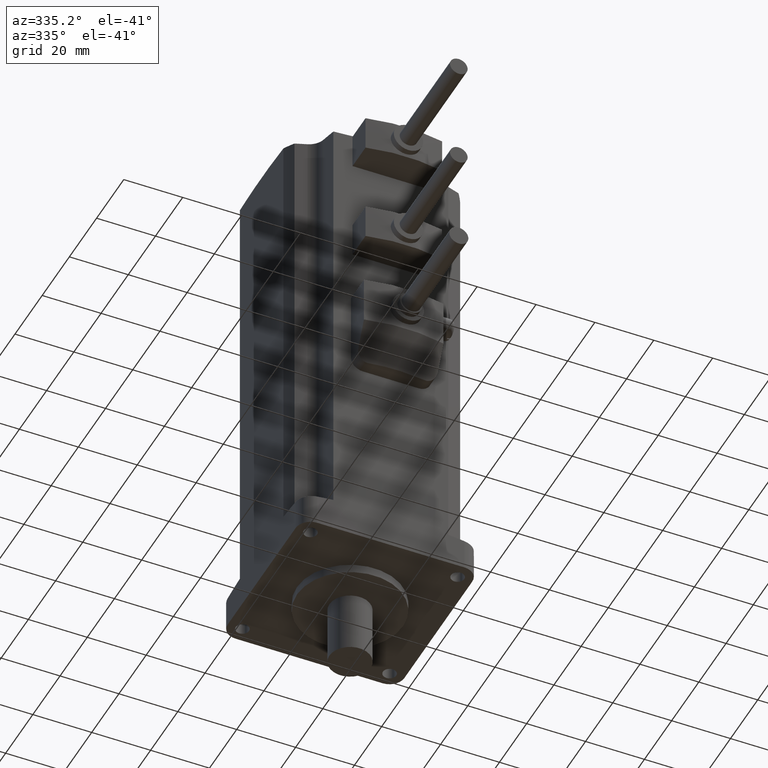
[diagram: clean part render]
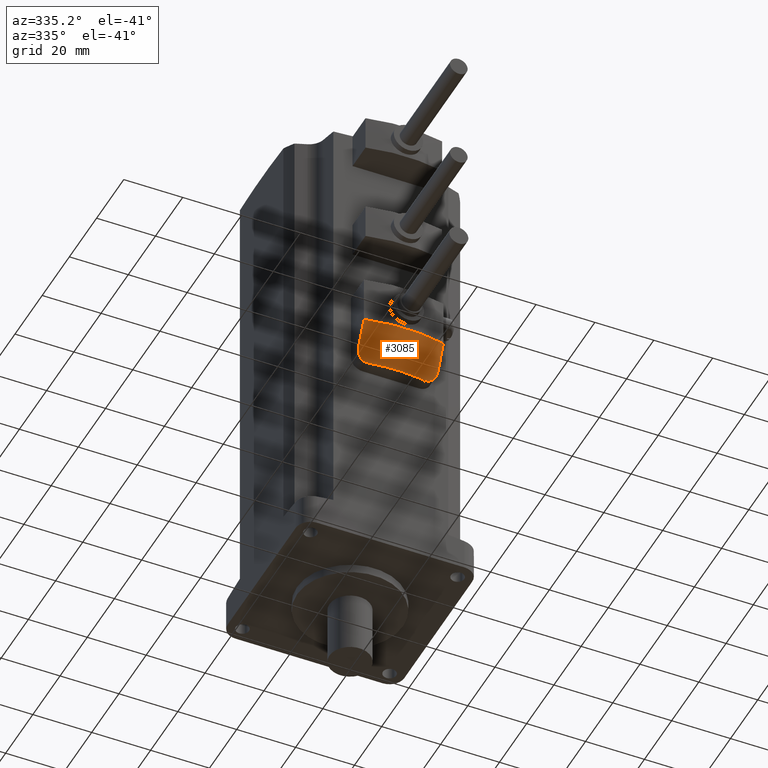
[diagram: same view with one face highlighted and labeled with its STEP entity id]
A machine part, auxiliary view. The second image highlights one B-rep face of the part: STEP entity #3085.
In plain terms, the highlighted face is a freeform B-spline surface patch.
Its self-contained STEP definition (entity closure, byte-faithful):
#32 = CIRCLE ( 'NONE', #3870, 60.00000000000000000 ) ;
#46 = EDGE_CURVE ( 'NONE', #3300, #2056, #2901, .T. ) ;
#178 = LINE ( 'NONE', #319, #5138 ) ;
#218 = ORIENTED_EDGE ( 'NONE', *, *, #3942, .T. ) ;
#256 =( BOUNDED_SURFACE ( )  B_SPLINE_SURFACE ( 3, 1, ( 
 ( #2317, #4769 ),
 ( #437, #1197 ),
 ( #4002, #1559 ),
 ( #1922, #3151 ) ),
 .UNSPECIFIED., .F., .F., .F. ) 
 B_SPLINE_SURFACE_WITH_KNOTS ( ( 4, 4 ),
 ( 2, 2 ),
 ( 0.0000000000000000000, 1.000000000000000000 ),
 ( 0.0000000000000000000, 1.000000000000000000 ),
 .UNSPECIFIED. ) 
 GEOMETRIC_REPRESENTATION_ITEM ( )  RATIONAL_B_SPLINE_SURFACE ( (
 ( 1.000000000000000000, 1.000000000000000000),
 ( 0.9829058423301690883, 0.9829058423301690883),
 ( 0.9829058423301690883, 0.9829058423301690883),
 ( 1.000000000000000000, 1.000000000000000000) ) ) 
 REPRESENTATION_ITEM ( '' )  SURFACE ( )  );
#299 = CARTESIAN_POINT ( 'NONE',  ( -10.57450776104492896, -34.12843994265194425, 67.63735262351632116 ) ) ;
#303 = CARTESIAN_POINT ( 'NONE',  ( -3.136720277832199422, -34.93923013271018618, 67.50000000000000000 ) ) ;
#319 = CARTESIAN_POINT ( 'NONE',  ( 13.50000000000000533, -18.75635014758168850, 37.35438989262622300 ) ) ;
#329 = CARTESIAN_POINT ( 'NONE',  ( -1.548455948475013999, -35.00094392129675214, 67.50000000000000000 ) ) ;
#351 = CARTESIAN_POINT ( 'NONE',  ( -12.81066511392276830, -34.47082892102596219, 69.25141310991961063 ) ) ;
#424 = CARTESIAN_POINT ( 'NONE',  ( 13.01765801228201802, -34.58471816124337295, 69.57814321692603698 ) ) ;
#437 = CARTESIAN_POINT ( 'NONE',  ( 4.578261524350977218, -35.52174349567316369, 67.50000000000000000 ) ) ;
#531 = CARTESIAN_POINT ( 'NONE',  ( 10.82867431691808235, -34.12135916853024753, 67.71745564410953477 ) ) ;
#691 = DIRECTION ( 'NONE',  ( -0.0000000000000000000, -0.4384236320214142668, 0.8987684456438996827 ) ) ;
#724 = CARTESIAN_POINT ( 'NONE',  ( -13.31848228831807468, -34.86014666968777220, 70.28169370064232169 ) ) ;
#729 = CARTESIAN_POINT ( 'NONE',  ( -7.918103306390247731, -34.49680986426583473, 67.50000000000000000 ) ) ;
#749 = CARTESIAN_POINT ( 'NONE',  ( -13.47759624007209744, -35.17910057881120167, 71.01039413446817150 ) ) ;
#846 = CARTESIAN_POINT ( 'NONE',  ( 13.13303648534986579, -34.67050269656777317, 69.80701103023288567 ) ) ;
#1140 = CARTESIAN_POINT ( 'NONE',  ( -13.38716404178432384, -34.96301636351223152, 70.52483772383369853 ) ) ;
#1195 = VERTEX_POINT ( 'NONE', #1925 ) ;
#1197 = CARTESIAN_POINT ( 'NONE',  ( 4.578261524350977218, -41.52174349567316369, 79.79999999999999716 ) ) ;
#1209 = CARTESIAN_POINT ( 'NONE',  ( 12.20976696774798498, -34.25499739075450378, 68.54581809630550993 ) ) ;
#1498 = VERTEX_POINT ( 'NONE', #2884 ) ;
#1500 = CARTESIAN_POINT ( 'NONE',  ( 9.500000000007661427, -34.24314306314152390, 67.50000000000000000 ) ) ;
#1534 = EDGE_CURVE ( 'NONE', #4943, #1498, #32, .T. ) ;
#1559 = CARTESIAN_POINT ( 'NONE',  ( -4.578261524350983436, -41.52174349567317080, 79.79999999999999716 ) ) ;
#1580 = FACE_OUTER_BOUND ( 'NONE', #2467, .T. ) ;
#1594 = CARTESIAN_POINT ( 'NONE',  ( 11.56099622106447811, -34.14981213963760354, 68.06111250106494026 ) ) ;
#1618 = CARTESIAN_POINT ( 'NONE',  ( 13.38727625436604995, -34.96322628214247885, 70.52532078884716782 ) ) ;
#1642 = ORIENTED_EDGE ( 'NONE', *, *, #2222, .F. ) ;
#1733 = CARTESIAN_POINT ( 'NONE',  ( 13.50000000000000533, -35.41274532191035718, 71.50000000000001421 ) ) ;
#1837 = CARTESIAN_POINT ( 'NONE',  ( -11.32865264113721615, -34.13219257540012563, 67.93222928183793385 ) ) ;
#1862 = CARTESIAN_POINT ( 'NONE',  ( -13.01770312298412513, -34.58485576993624022, 69.57845095464764995 ) ) ;
#1866 = CARTESIAN_POINT ( 'NONE',  ( 6.360037301111250763, -34.74665526889583589, 67.50000000000000000 ) ) ;
#1922 = CARTESIAN_POINT ( 'NONE',  ( -13.50000000000001776, -33.46152580971523349, 67.50000000000000000 ) ) ;
#1925 = CARTESIAN_POINT ( 'NONE',  ( -9.500000000006677325, -34.24314306314168732, 67.50000000000000000 ) ) ;
#1935 = CARTESIAN_POINT ( 'NONE',  ( -10.83239671236207080, -34.12131778728752352, 67.71877303244045265 ) ) ;
#1981 = B_SPLINE_CURVE_WITH_KNOTS ( 'NONE', 3,
 ( #1500, #1866, #2333, #329, #303, #3917, #729, #4342 ),
 .UNSPECIFIED., .F., .F.,
 ( 4, 2, 2, 4 ),
 ( 0.004038723917546237045, 0.01353058257738122550, 0.01827651190729872102, 0.02302244123721621655 ),
 .UNSPECIFIED. ) ;
#2056 = VERTEX_POINT ( 'NONE', #1733 ) ;
#2222 = EDGE_CURVE ( 'NONE', #3300, #1195, #1981, .T. ) ;
#2250 = CARTESIAN_POINT ( 'NONE',  ( -13.50000000000001954, -35.41274532191035718, 71.50000000000001421 ) ) ;
#2305 = CARTESIAN_POINT ( 'NONE',  ( -9.500000000006677325, -34.24314306314168732, 67.50000000000000000 ) ) ;
#2317 = CARTESIAN_POINT ( 'NONE',  ( 13.50000000000001066, -33.46152580971523349, 67.50000000000000000 ) ) ;
#2333 = CARTESIAN_POINT ( 'NONE',  ( 3.205371691824354663, -34.99807948093933163, 67.49999999999998579 ) ) ;
#2339 = VECTOR ( 'NONE', #4242, 1000.000000000000114 ) ;
#2399 = ORIENTED_EDGE ( 'NONE', *, *, #3305, .F. ) ;
#2429 = CARTESIAN_POINT ( 'NONE',  ( 9.770133014376989777, -34.19982558361986946, 67.50000000000038369 ) ) ;
#2467 = EDGE_LOOP ( 'NONE', ( #2399, #218, #1642, #3758, #2598, #3055 ) ) ;
#2566 = EDGE_CURVE ( 'NONE', #2056, #4943, #178, .T. ) ;
#2598 = ORIENTED_EDGE ( 'NONE', *, *, #2566, .T. ) ;
#2793 = CARTESIAN_POINT ( 'NONE',  ( 12.57532611377687459, -34.36452451348569781, 68.92854184682384755 ) ) ;
#2884 = CARTESIAN_POINT ( 'NONE',  ( -13.50000000000001954, -39.46152580971521928, 79.80000000000001137 ) ) ;
#2901 = B_SPLINE_CURVE_WITH_KNOTS ( 'NONE', 3,
 ( #4467, #2429, #4492, #3989, #531, #3705, #1594, #4782, #1209, #2793, #4388, #424, #846, #3600, #1618, #4017, #3213, #4806 ),
 .UNSPECIFIED., .F., .F.,
 ( 4, 2, 2, 2, 2, 2, 2, 2, 4 ),
 ( 7.835547580124639759E-15, 0.0008094317095591846249, 0.001618863419110533721, 0.002428295128661882817, 0.003237726838213232129, 0.004047158547764581442, 0.004856590257315929887, 0.005666021966867279200, 0.006475453676418628512 ),
 .UNSPECIFIED. ) ;
#2906 = CARTESIAN_POINT ( 'NONE',  ( 9.500000000007661427, -34.24314306314152390, 67.50000000000000000 ) ) ;
#2936 = DIRECTION ( 'NONE',  ( 1.000000000000000000, 0.0000000000000000000, 0.0000000000000000000 ) ) ;
#3055 = ORIENTED_EDGE ( 'NONE', *, *, #1534, .T. ) ;
#3085 = ADVANCED_FACE ( 'NONE', ( #1580 ), #256, .F. ) ;
#3151 = CARTESIAN_POINT ( 'NONE',  ( -13.50000000000001776, -39.46152580971523349, 79.80000000000001137 ) ) ;
#3213 = CARTESIAN_POINT ( 'NONE',  ( 13.49999999999999822, -35.29305665584917762, 71.25463823457458545 ) ) ;
#3300 = VERTEX_POINT ( 'NONE', #2906 ) ;
#3305 = EDGE_CURVE ( 'NONE', #3980, #1498, #3454, .T. ) ;
#3308 = CARTESIAN_POINT ( 'NONE',  ( 0.0000000000000000000, 19.00000000000000355, 79.80000000000001137 ) ) ;
#3428 = CARTESIAN_POINT ( 'NONE',  ( -12.57407285787558671, -34.36882962501636740, 68.93730667199569950 ) ) ;
#3454 = LINE ( 'NONE', #3839, #2339 ) ;
#3478 = CARTESIAN_POINT ( 'NONE',  ( -13.50000000000001954, -35.41274532191035718, 71.50000000000001421 ) ) ;
#3520 = B_SPLINE_CURVE_WITH_KNOTS ( 'NONE', 3,
 ( #2250, #5074, #749, #1140, #724, #3837, #1862, #351, #5047, #3428, #4241, #4263, #3812, #5100, #1837, #1935, #299, #5126, #4316, #2305 ),
 .UNSPECIFIED., .F., .F.,
 ( 4, 2, 2, 2, 2, 2, 2, 2, 2, 4 ),
 ( 0.0000000000000000000, 0.0008086161761526038539, 0.001617232352305207708, 0.002425848528457811779, 0.002830156616534096684, 0.003234464704610382022, 0.004043080880762927112, 0.004851697056915471769, 0.005660313233068016425, 0.006468929409220561082 ),
 .UNSPECIFIED. ) ;
#3600 = CARTESIAN_POINT ( 'NONE',  ( 13.31877589141399376, -34.86051120082584731, 70.28257795042490841 ) ) ;
#3705 = CARTESIAN_POINT ( 'NONE',  ( 11.32533470716786539, -34.13199864573488185, 67.93052238394399467 ) ) ;
#3758 = ORIENTED_EDGE ( 'NONE', *, *, #46, .T. ) ;
#3812 = CARTESIAN_POINT ( 'NONE',  ( -12.00993820368010390, -34.21246265541529397, 68.37393478209118314 ) ) ;
#3837 = CARTESIAN_POINT ( 'NONE',  ( -13.13277915517903338, -34.67030382233424035, 69.80648506503483475 ) ) ;
#3839 = CARTESIAN_POINT ( 'NONE',  ( -13.50000000000001954, -18.75635014758168850, 37.35438989262622300 ) ) ;
#3870 = AXIS2_PLACEMENT_3D ( 'NONE', #3308, #4925, #2936 ) ;
#3917 = CARTESIAN_POINT ( 'NONE',  ( -6.320731623465451143, -34.68750853191545502, 67.50000000000000000 ) ) ;
#3942 = EDGE_CURVE ( 'NONE', #3980, #1195, #3520, .T. ) ;
#3980 = VERTEX_POINT ( 'NONE', #3478 ) ;
#3989 = CARTESIAN_POINT ( 'NONE',  ( 10.56516640431868304, -34.12896019339161313, 67.63502578148077760 ) ) ;
#4002 = CARTESIAN_POINT ( 'NONE',  ( -4.578261524350983436, -35.52174349567317080, 67.50000000000000000 ) ) ;
#4017 = CARTESIAN_POINT ( 'NONE',  ( 13.47761387306211667, -35.17920100482302814, 71.01060841932518031 ) ) ;
#4241 = CARTESIAN_POINT ( 'NONE',  ( -12.48655367297764052, -34.33800249662007076, 68.83576387625802795 ) ) ;
#4242 = DIRECTION ( 'NONE',  ( -0.0000000000000000000, -0.4384236320214142668, 0.8987684456438996827 ) ) ;
#4263 = CARTESIAN_POINT ( 'NONE',  ( -12.21145294074679910, -34.25535421508253364, 68.54726384371595316 ) ) ;
#4316 = CARTESIAN_POINT ( 'NONE',  ( -9.770436377366911174, -34.19977693750950465, 67.49999999999998579 ) ) ;
#4342 = CARTESIAN_POINT ( 'NONE',  ( -9.500000000006677325, -34.24314306314168732, 67.50000000000000000 ) ) ;
#4388 = CARTESIAN_POINT ( 'NONE',  ( 12.73960474004388033, -34.43180580783263167, 69.13940420353155503 ) ) ;
#4467 = CARTESIAN_POINT ( 'NONE',  ( 9.500000000007661427, -34.24314306314152390, 67.50000000000000000 ) ) ;
#4475 = CARTESIAN_POINT ( 'NONE',  ( 13.50000000000000533, -39.46152580971521928, 79.80000000000001137 ) ) ;
#4492 = CARTESIAN_POINT ( 'NONE',  ( 10.03717985991708517, -34.16832107594780155, 67.52708633660296300 ) ) ;
#4769 = CARTESIAN_POINT ( 'NONE',  ( 13.50000000000001066, -39.46152580971523349, 79.80000000000001137 ) ) ;
#4782 = CARTESIAN_POINT ( 'NONE',  ( 12.00661042317840455, -34.21172787161091122, 68.37101344841701689 ) ) ;
#4806 = CARTESIAN_POINT ( 'NONE',  ( 13.50000000000000533, -35.41274532191035718, 71.50000000000001421 ) ) ;
#4925 = DIRECTION ( 'NONE',  ( -0.0000000000000000000, -0.0000000000000000000, -1.000000000000000000 ) ) ;
#4943 = VERTEX_POINT ( 'NONE', #4475 ) ;
#5047 = CARTESIAN_POINT ( 'NONE',  ( -12.73587916913783147, -34.43519089707698555, 69.14491889063985752 ) ) ;
#5074 = CARTESIAN_POINT ( 'NONE',  ( -13.50000000000000178, -35.29300889309670453, 71.25454032093200851 ) ) ;
#5100 = CARTESIAN_POINT ( 'NONE',  ( -11.56968906130092734, -34.15075489001499420, 68.06656721014616096 ) ) ;
#5126 = CARTESIAN_POINT ( 'NONE',  ( -10.03943780515330175, -34.16798038677576699, 67.52713975353104559 ) ) ;
#5138 = VECTOR ( 'NONE', #691, 1000.000000000000114 ) ;